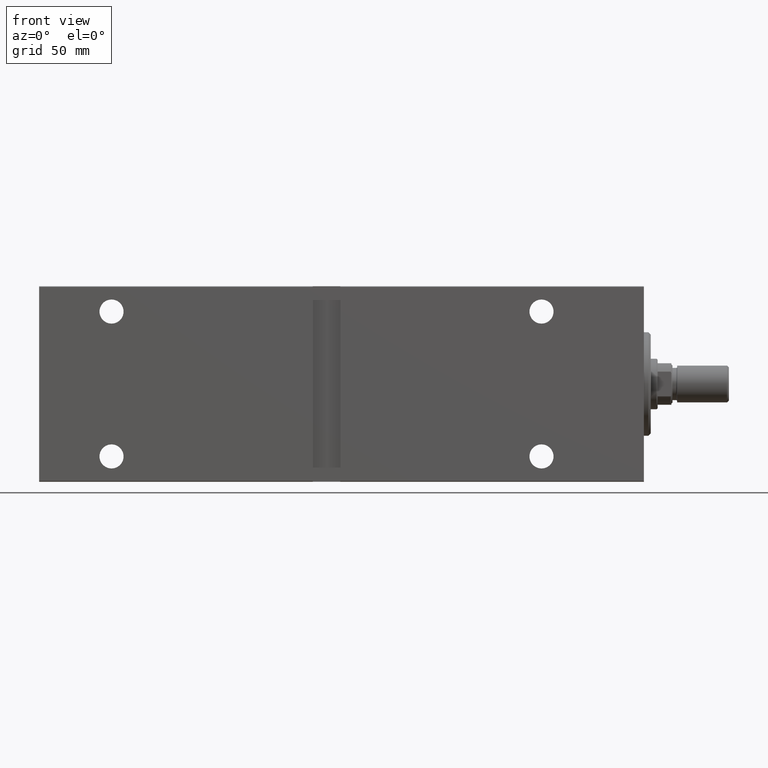
[diagram: clean part render]
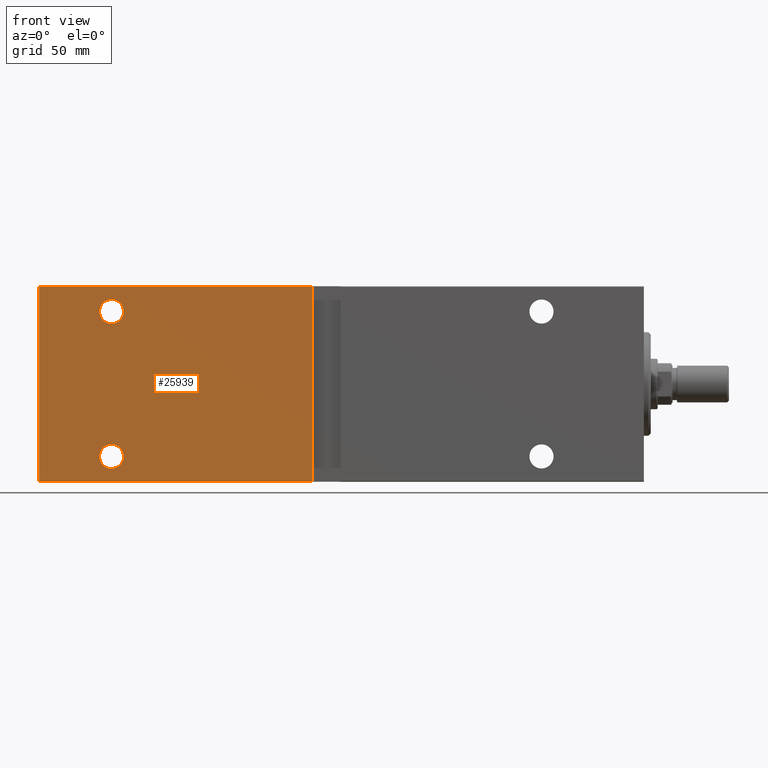
[diagram: same view with one face highlighted and labeled with its STEP entity id]
A machine part, front view. The second image highlights one B-rep face of the part: STEP entity #25939.
In plain terms, the highlighted planar face has unit normal (-0, 1, -0).
Its self-contained STEP definition (entity closure, byte-faithful):
#500 = CARTESIAN_POINT ( 'NONE',  ( 231.5000000000000284, 31.50000000000001421, -36.75000000000000000 ) ) ;
#1563 = EDGE_LOOP ( 'NONE', ( #13850, #4741 ) ) ;
#1785 = AXIS2_PLACEMENT_3D ( 'NONE', #21539, #28603, #25740 ) ;
#2032 = CARTESIAN_POINT ( 'NONE',  ( 263.0000000000000000, 31.50000000000000000, 42.19999999999998863 ) ) ;
#2772 = VERTEX_POINT ( 'NONE', #6911 ) ;
#4333 = CIRCLE ( 'NONE', #9307, 5.250000000000004441 ) ;
#4377 = EDGE_CURVE ( 'NONE', #30119, #11343, #31743, .T. ) ;
#4741 = ORIENTED_EDGE ( 'NONE', *, *, #30497, .T. ) ;
#5638 = EDGE_CURVE ( 'NONE', #16305, #2772, #11678, .T. ) ;
#6001 = DIRECTION ( 'NONE',  ( 0.000000000000000000, 1.632680918566406054E-16, -1.000000000000000000 ) ) ;
#6911 = CARTESIAN_POINT ( 'NONE',  ( 231.4999999999999716, 31.50000000000000000, 26.25000000000000355 ) ) ;
#7979 = DIRECTION ( 'NONE',  ( 0.000000000000000000, 0.000000000000000000, -1.000000000000000000 ) ) ;
#8894 = FACE_BOUND ( 'NONE', #1563, .T. ) ;
#9307 = AXIS2_PLACEMENT_3D ( 'NONE', #28748, #11295, #7979 ) ;
#9496 = AXIS2_PLACEMENT_3D ( 'NONE', #32516, #22586, #6001 ) ;
#9539 = VECTOR ( 'NONE', #20736, 1000.000000000000000 ) ;
#10302 = DIRECTION ( 'NONE',  ( 0.000000000000000000, -1.000000000000000000, -1.632680918566406054E-16 ) ) ;
#10464 = LINE ( 'NONE', #20845, #18517 ) ;
#10899 = AXIS2_PLACEMENT_3D ( 'NONE', #16931, #10302, #30403 ) ;
#11295 = DIRECTION ( 'NONE',  ( 0.000000000000000000, -1.000000000000000000, -1.632680918566406054E-16 ) ) ;
#11343 = VERTEX_POINT ( 'NONE', #14575 ) ;
#11406 = CIRCLE ( 'NONE', #22716, 5.250000000000004441 ) ;
#11678 = CIRCLE ( 'NONE', #1785, 5.250000000000004441 ) ;
#12722 = ORIENTED_EDGE ( 'NONE', *, *, #19015, .F. ) ;
#13850 = ORIENTED_EDGE ( 'NONE', *, *, #5638, .T. ) ;
#14575 = CARTESIAN_POINT ( 'NONE',  ( 144.0000000000000284, 31.50000000000001421, -42.20000000000001705 ) ) ;
#14871 = ORIENTED_EDGE ( 'NONE', *, *, #43360, .F. ) ;
#15657 = ORIENTED_EDGE ( 'NONE', *, *, #4377, .T. ) ;
#16305 = VERTEX_POINT ( 'NONE', #26918 ) ;
#16398 = PLANE ( 'NONE',  #9496 ) ;
#16609 = EDGE_CURVE ( 'NONE', #19002, #35300, #4333, .T. ) ;
#16873 = CARTESIAN_POINT ( 'NONE',  ( 231.5000000000000284, 31.50000000000001421, -26.24999999999998934 ) ) ;
#16931 = CARTESIAN_POINT ( 'NONE',  ( 231.4999999999999716, 31.50000000000000000, 31.50000000000000711 ) ) ;
#17938 = EDGE_CURVE ( 'NONE', #35300, #19002, #11406, .T. ) ;
#18517 = VECTOR ( 'NONE', #21059, 1000.000000000000000 ) ;
#19002 = VERTEX_POINT ( 'NONE', #500 ) ;
#19015 = EDGE_CURVE ( 'NONE', #30119, #19452, #10464, .T. ) ;
#19213 = CARTESIAN_POINT ( 'NONE',  ( 263.0000000000000000, 31.50000000000001421, -42.20000000000001705 ) ) ;
#19452 = VERTEX_POINT ( 'NONE', #37248 ) ;
#20736 = DIRECTION ( 'NONE',  ( -1.000000000000000000, 0.000000000000000000, 0.000000000000000000 ) ) ;
#20845 = CARTESIAN_POINT ( 'NONE',  ( 263.0000000000000000, 31.50000000000001421, -42.50000000000000711 ) ) ;
#21059 = DIRECTION ( 'NONE',  ( 0.000000000000000000, -1.632680918566406300E-16, 1.000000000000000000 ) ) ;
#21514 = CARTESIAN_POINT ( 'NONE',  ( 231.5000000000000284, 31.50000000000001421, -31.49999999999999289 ) ) ;
#21539 = CARTESIAN_POINT ( 'NONE',  ( 231.4999999999999716, 31.50000000000000000, 31.50000000000000711 ) ) ;
#22586 = DIRECTION ( 'NONE',  ( 0.000000000000000000, -1.000000000000000000, -1.632680918566406054E-16 ) ) ;
#22716 = AXIS2_PLACEMENT_3D ( 'NONE', #21514, #34981, #31659 ) ;
#23344 = VECTOR ( 'NONE', #36611, 1000.000000000000000 ) ;
#25740 = DIRECTION ( 'NONE',  ( 0.000000000000000000, 0.000000000000000000, -1.000000000000000000 ) ) ;
#25939 = ADVANCED_FACE ( 'NONE', ( #29657, #8894, #29437 ), #16398, .F. ) ;
#26306 = ORIENTED_EDGE ( 'NONE', *, *, #26596, .T. ) ;
#26363 = EDGE_LOOP ( 'NONE', ( #32379, #38014 ) ) ;
#26596 = EDGE_CURVE ( 'NONE', #27869, #19452, #31869, .T. ) ;
#26918 = CARTESIAN_POINT ( 'NONE',  ( 231.4999999999999716, 31.50000000000000000, 36.75000000000001421 ) ) ;
#27594 = CARTESIAN_POINT ( 'NONE',  ( 144.0000000000000284, 31.50000000000000000, 42.19999999999998153 ) ) ;
#27869 = VERTEX_POINT ( 'NONE', #27594 ) ;
#28556 = CIRCLE ( 'NONE', #10899, 5.250000000000004441 ) ;
#28603 = DIRECTION ( 'NONE',  ( 0.000000000000000000, -1.000000000000000000, -1.632680918566406054E-16 ) ) ;
#28748 = CARTESIAN_POINT ( 'NONE',  ( 231.5000000000000284, 31.50000000000001421, -31.49999999999999289 ) ) ;
#28784 = DIRECTION ( 'NONE',  ( 1.000000000000000000, 0.000000000000000000, 0.000000000000000000 ) ) ;
#29437 = FACE_OUTER_BOUND ( 'NONE', #35513, .T. ) ;
#29657 = FACE_BOUND ( 'NONE', #26363, .T. ) ;
#30119 = VERTEX_POINT ( 'NONE', #19213 ) ;
#30403 = DIRECTION ( 'NONE',  ( 0.000000000000000000, 0.000000000000000000, -1.000000000000000000 ) ) ;
#30497 = EDGE_CURVE ( 'NONE', #2772, #16305, #28556, .T. ) ;
#31659 = DIRECTION ( 'NONE',  ( 0.000000000000000000, 0.000000000000000000, -1.000000000000000000 ) ) ;
#31743 = LINE ( 'NONE', #38587, #9539 ) ;
#31869 = LINE ( 'NONE', #2032, #33530 ) ;
#32379 = ORIENTED_EDGE ( 'NONE', *, *, #17938, .T. ) ;
#32516 = CARTESIAN_POINT ( 'NONE',  ( 263.0000000000000000, 31.50000000000001421, -42.50000000000000711 ) ) ;
#33530 = VECTOR ( 'NONE', #28784, 1000.000000000000000 ) ;
#34981 = DIRECTION ( 'NONE',  ( 0.000000000000000000, -1.000000000000000000, -1.632680918566406054E-16 ) ) ;
#35300 = VERTEX_POINT ( 'NONE', #16873 ) ;
#35513 = EDGE_LOOP ( 'NONE', ( #12722, #15657, #14871, #26306 ) ) ;
#36611 = DIRECTION ( 'NONE',  ( -0.000000000000000000, 1.632680918566406793E-16, -1.000000000000000000 ) ) ;
#36835 = LINE ( 'NONE', #40787, #23344 ) ;
#37248 = CARTESIAN_POINT ( 'NONE',  ( 263.0000000000000000, 31.50000000000000000, 42.19999999999998863 ) ) ;
#38014 = ORIENTED_EDGE ( 'NONE', *, *, #16609, .T. ) ;
#38587 = CARTESIAN_POINT ( 'NONE',  ( 263.0000000000000000, 31.50000000000001421, -42.20000000000001705 ) ) ;
#40787 = CARTESIAN_POINT ( 'NONE',  ( 144.0000000000000284, 31.50000000000001421, -42.49999999999998579 ) ) ;
#43360 = EDGE_CURVE ( 'NONE', #27869, #11343, #36835, .T. ) ;